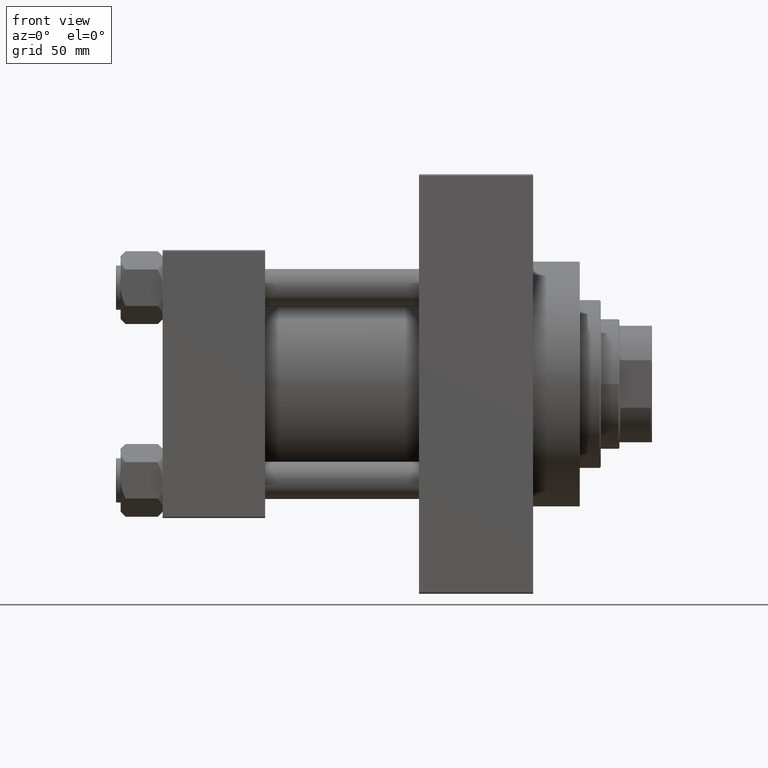
[diagram: clean part render]
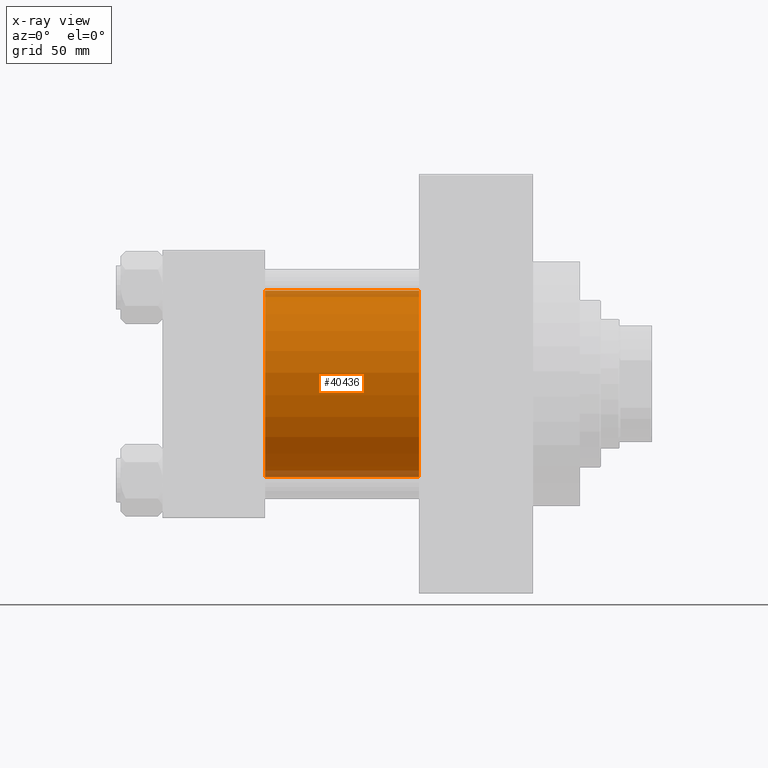
[diagram: x-ray — body ghosted, one internal face saturated and labeled with its STEP entity id]
A machine part, front view, then the same camera in x-ray: the body is ghosted and one INTERNAL B-rep face — a face not visible from any outside direction — is saturated and labeled: STEP entity #40436.
In plain terms, the highlighted cylindrical surface (partial cylindrical patch) has radius 40 mm, axis along (-1, -0, -0).
Its self-contained STEP definition (entity closure, byte-faithful):
#775 = DIRECTION ( 'NONE',  ( 0.000000000000000000, 0.000000000000000000, -1.000000000000000000 ) ) ;
#1799 = EDGE_CURVE ( 'NONE', #24718, #39394, #12173, .T. ) ;
#4710 = CARTESIAN_POINT ( 'NONE',  ( 110.0000000000000000, -2.602085213965210642E-15, 40.00000000000000000 ) ) ;
#5313 = ORIENTED_EDGE ( 'NONE', *, *, #21219, .F. ) ;
#6460 = DIRECTION ( 'NONE',  ( -1.000000000000000000, -0.000000000000000000, -0.000000000000000000 ) ) ;
#7911 = EDGE_LOOP ( 'NONE', ( #26020, #31532, #40138, #5313 ) ) ;
#9870 = EDGE_CURVE ( 'NONE', #42497, #24718, #10782, .T. ) ;
#10782 = CIRCLE ( 'NONE', #37758, 40.00000000000000000 ) ;
#12173 = LINE ( 'NONE', #44962, #12849 ) ;
#12849 = VECTOR ( 'NONE', #34850, 1000.000000000000000 ) ;
#13134 = CARTESIAN_POINT ( 'NONE',  ( 44.00000000000000000, 2.296501982624201990E-15, -40.00000000000000000 ) ) ;
#13296 = CARTESIAN_POINT ( 'NONE',  ( 110.0000000000000000, 2.296501982624201990E-15, -40.00000000000000000 ) ) ;
#13453 = CARTESIAN_POINT ( 'NONE',  ( 110.0000000000000000, -2.602085213965210642E-15, 0.000000000000000000 ) ) ;
#15711 = CARTESIAN_POINT ( 'NONE',  ( 44.00000000000000000, -2.602085213965210642E-15, 0.000000000000000000 ) ) ;
#17855 = CARTESIAN_POINT ( 'NONE',  ( 110.0000000000000000, -2.602085213965210642E-15, 40.00000000000000000 ) ) ;
#19188 = VERTEX_POINT ( 'NONE', #40392 ) ;
#20443 = FACE_OUTER_BOUND ( 'NONE', #7911, .T. ) ;
#20466 = DIRECTION ( 'NONE',  ( 0.000000000000000000, 0.000000000000000000, -1.000000000000000000 ) ) ;
#21219 = EDGE_CURVE ( 'NONE', #42497, #19188, #43882, .T. ) ;
#24718 = VERTEX_POINT ( 'NONE', #13296 ) ;
#25504 = AXIS2_PLACEMENT_3D ( 'NONE', #15711, #40560, #775 ) ;
#26020 = ORIENTED_EDGE ( 'NONE', *, *, #9870, .T. ) ;
#26455 = VECTOR ( 'NONE', #40526, 1000.000000000000000 ) ;
#28154 = DIRECTION ( 'NONE',  ( 0.000000000000000000, 0.000000000000000000, 1.000000000000000000 ) ) ;
#28392 = CYLINDRICAL_SURFACE ( 'NONE', #43997, 40.00000000000000000 ) ;
#31330 = DIRECTION ( 'NONE',  ( 1.000000000000000000, 0.000000000000000000, 0.000000000000000000 ) ) ;
#31532 = ORIENTED_EDGE ( 'NONE', *, *, #1799, .T. ) ;
#31566 = CARTESIAN_POINT ( 'NONE',  ( 110.0000000000000000, -2.602085213965210642E-15, 0.000000000000000000 ) ) ;
#34850 = DIRECTION ( 'NONE',  ( -1.000000000000000000, -0.000000000000000000, -0.000000000000000000 ) ) ;
#37758 = AXIS2_PLACEMENT_3D ( 'NONE', #31566, #31330, #20466 ) ;
#39394 = VERTEX_POINT ( 'NONE', #13134 ) ;
#40138 = ORIENTED_EDGE ( 'NONE', *, *, #40820, .F. ) ;
#40392 = CARTESIAN_POINT ( 'NONE',  ( 44.00000000000000000, -2.602085213965210642E-15, 40.00000000000000000 ) ) ;
#40436 = ADVANCED_FACE ( 'NONE', ( #20443 ), #28392, .F. ) ;
#40526 = DIRECTION ( 'NONE',  ( -1.000000000000000000, -0.000000000000000000, -0.000000000000000000 ) ) ;
#40560 = DIRECTION ( 'NONE',  ( 1.000000000000000000, 0.000000000000000000, 0.000000000000000000 ) ) ;
#40820 = EDGE_CURVE ( 'NONE', #19188, #39394, #47098, .T. ) ;
#42497 = VERTEX_POINT ( 'NONE', #4710 ) ;
#43882 = LINE ( 'NONE', #17855, #26455 ) ;
#43997 = AXIS2_PLACEMENT_3D ( 'NONE', #13453, #6460, #28154 ) ;
#44962 = CARTESIAN_POINT ( 'NONE',  ( 110.0000000000000000, 2.296501982624201990E-15, -40.00000000000000000 ) ) ;
#47098 = CIRCLE ( 'NONE', #25504, 40.00000000000000000 ) ;